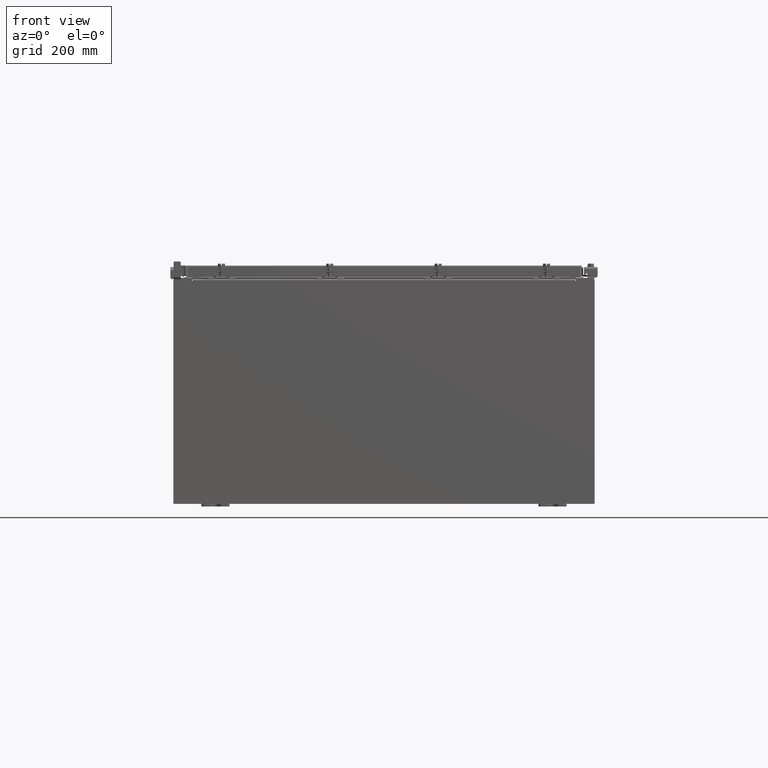
[diagram: clean part render]
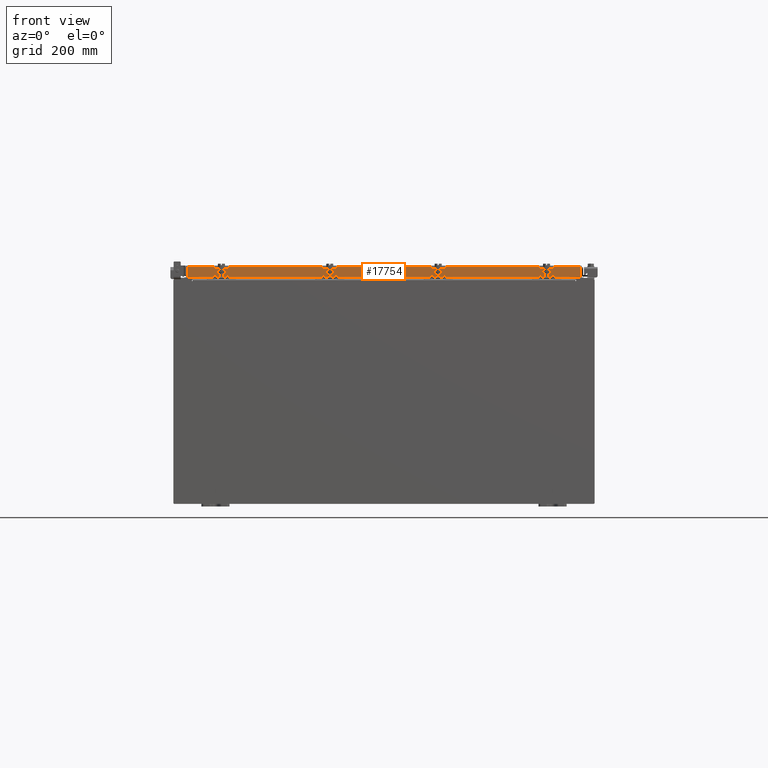
[diagram: same view with one face highlighted and labeled with its STEP entity id]
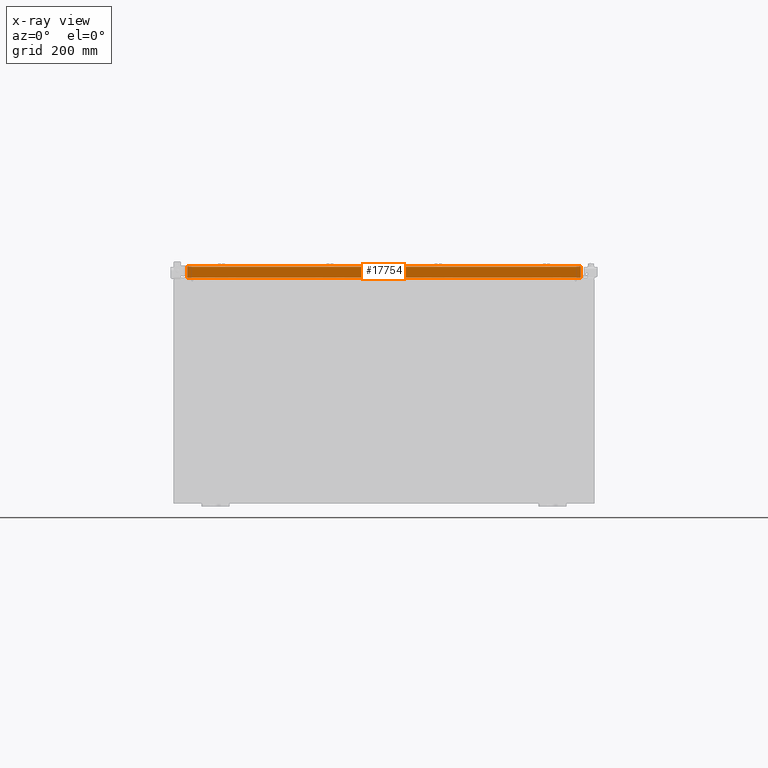
[diagram: x-ray of the same camera — body ghosted, the highlighted face saturated]
A machine part, front view. The second image highlights one B-rep face of the part: STEP entity #17754.
The next image is the same camera in x-ray: the body ghosted, the highlighted face saturated — about 0% of this face is hidden behind the body in this view.
In plain terms, the highlighted planar face has unit normal (-0, 1, -0).
Its self-contained STEP definition (entity closure, byte-faithful):
#316 = VERTEX_POINT ( 'NONE', #14337 ) ;
#599 = ORIENTED_EDGE ( 'NONE', *, *, #3010, .F. ) ;
#779 = DIRECTION ( 'NONE',  ( -3.418789178101958800E-031, 1.000000000000000000, -2.818880942772360100E-015 ) ) ;
#1248 = DIRECTION ( 'NONE',  ( -1.000000000000000000, 4.379057701015054300E-047, 1.212817869044015600E-016 ) ) ;
#1371 = ORIENTED_EDGE ( 'NONE', *, *, #17576, .F. ) ;
#1848 = DIRECTION ( 'NONE',  ( -1.000000000000000000, 4.379057701015054300E-047, 1.212817869044015600E-016 ) ) ;
#2567 = LINE ( 'NONE', #8819, #11997 ) ;
#2715 = VECTOR ( 'NONE', #10455, 39.37007874015748100 ) ;
#3010 = EDGE_CURVE ( 'NONE', #3826, #15666, #11618, .T. ) ;
#3188 = AXIS2_PLACEMENT_3D ( 'NONE', #15782, #779, #13996 ) ;
#3406 = EDGE_CURVE ( 'NONE', #316, #4795, #20186, .T. ) ;
#3542 = CARTESIAN_POINT ( 'NONE',  ( 13.98915786437626700, -17.09400000000000100, -0.07469999999999978000 ) ) ;
#3826 = VERTEX_POINT ( 'NONE', #11711 ) ;
#3865 = VERTEX_POINT ( 'NONE', #21301 ) ;
#4130 = DIRECTION ( 'NONE',  ( -1.000000000000000000, 0.0000000000000000000, 0.0000000000000000000 ) ) ;
#4601 = EDGE_CURVE ( 'NONE', #3865, #15666, #17769, .T. ) ;
#4795 = VERTEX_POINT ( 'NONE', #7949 ) ;
#5148 = VECTOR ( 'NONE', #1248, 39.37007874015748100 ) ;
#6625 = VECTOR ( 'NONE', #1848, 39.37007874015748100 ) ;
#7054 = ORIENTED_EDGE ( 'NONE', *, *, #3406, .F. ) ;
#7949 = CARTESIAN_POINT ( 'NONE',  ( 13.23915786437626900, -17.09399999999999800, -0.8500000000000006400 ) ) ;
#7955 = EDGE_LOOP ( 'NONE', ( #11128, #10678, #599, #1371, #7054, #17247 ) ) ;
#8819 = CARTESIAN_POINT ( 'NONE',  ( 14.07799999999999800, -17.09400000000000100, -0.08770000000000007000 ) ) ;
#9240 = EDGE_CURVE ( 'NONE', #3865, #10857, #2567, .T. ) ;
#10386 = VECTOR ( 'NONE', #13011, 39.37007874015748100 ) ;
#10455 = DIRECTION ( 'NONE',  ( 0.0000000000000000000, -2.818880942772360100E-015, -1.000000000000000000 ) ) ;
#10678 = ORIENTED_EDGE ( 'NONE', *, *, #4601, .T. ) ;
#10857 = VERTEX_POINT ( 'NONE', #11642 ) ;
#11128 = ORIENTED_EDGE ( 'NONE', *, *, #9240, .F. ) ;
#11565 = LINE ( 'NONE', #3542, #10386 ) ;
#11618 = LINE ( 'NONE', #13151, #6625 ) ;
#11642 = CARTESIAN_POINT ( 'NONE',  ( 13.98915786437626500, -17.09400000000000100, -0.08770000000000007000 ) ) ;
#11711 = CARTESIAN_POINT ( 'NONE',  ( -13.23915786437626900, -17.09399999999999800, -0.8500000000000006400 ) ) ;
#11997 = VECTOR ( 'NONE', #20136, 39.37007874015748100 ) ;
#12075 = PLANE ( 'NONE',  #3188 ) ;
#12542 = CARTESIAN_POINT ( 'NONE',  ( 14.07799999999999900, -17.09400000000000500, -0.8499999999999996400 ) ) ;
#12688 = VECTOR ( 'NONE', #4130, 39.37007874015748100 ) ;
#13011 = DIRECTION ( 'NONE',  ( -0.0000000000000000000, -2.818880942772360100E-015, -1.000000000000000000 ) ) ;
#13151 = CARTESIAN_POINT ( 'NONE',  ( 14.07799999999999900, -17.09400000000000500, -0.8499999999999996400 ) ) ;
#13996 = DIRECTION ( 'NONE',  ( 0.0000000000000000000, 2.818880942772360100E-015, 1.000000000000000000 ) ) ;
#14337 = CARTESIAN_POINT ( 'NONE',  ( 13.98915786437626700, -17.09400000000000500, -0.8499999999999996400 ) ) ;
#15666 = VERTEX_POINT ( 'NONE', #22291 ) ;
#15738 = EDGE_CURVE ( 'NONE', #10857, #316, #11565, .T. ) ;
#15782 = CARTESIAN_POINT ( 'NONE',  ( 5.844078221047488800E-030, -17.09400000000000100, 4.844676449176230700E-014 ) ) ;
#17247 = ORIENTED_EDGE ( 'NONE', *, *, #15738, .F. ) ;
#17576 = EDGE_CURVE ( 'NONE', #4795, #3826, #22772, .T. ) ;
#17754 = ADVANCED_FACE ( 'NONE', ( #20383 ), #12075, .F. ) ;
#17769 = LINE ( 'NONE', #23781, #2715 ) ;
#20136 = DIRECTION ( 'NONE',  ( 1.000000000000000000, 3.418789178101959700E-031, -9.318824769679573900E-046 ) ) ;
#20186 = LINE ( 'NONE', #12542, #5148 ) ;
#20383 = FACE_OUTER_BOUND ( 'NONE', #7955, .T. ) ;
#21301 = CARTESIAN_POINT ( 'NONE',  ( -13.98915786437626900, -17.09400000000000100, -0.08770000000000007000 ) ) ;
#22291 = CARTESIAN_POINT ( 'NONE',  ( -13.98915786437626900, -17.09400000000000500, -0.8499999999999963100 ) ) ;
#22772 = LINE ( 'NONE', #22943, #12688 ) ;
#22943 = CARTESIAN_POINT ( 'NONE',  ( 13.23915786437626900, -17.09399999999999800, -0.8500000000000006400 ) ) ;
#23781 = CARTESIAN_POINT ( 'NONE',  ( -13.98915786437626900, -17.09400000000000100, 4.844676449176230700E-014 ) ) ;